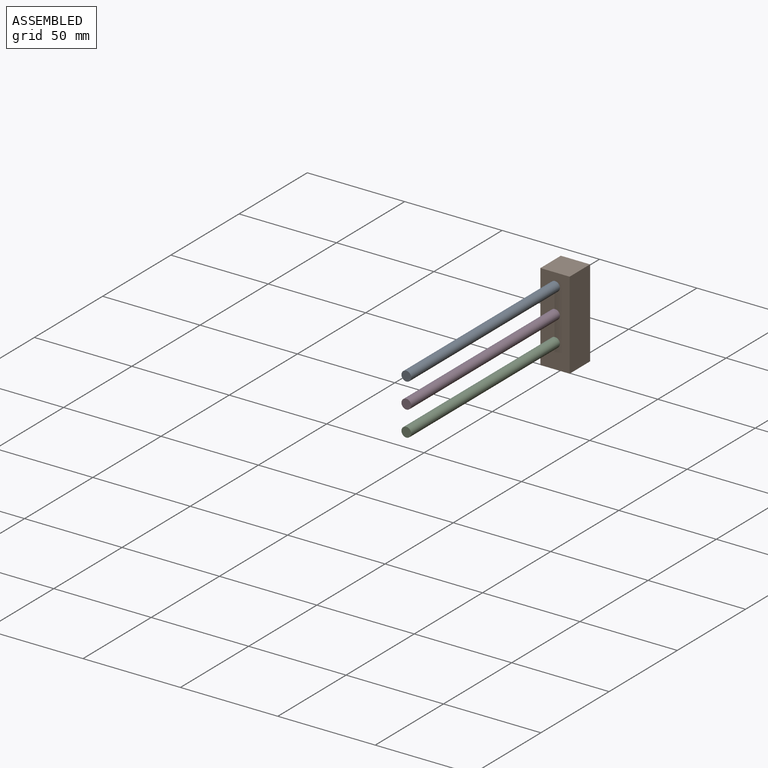
[diagram: assembled view]
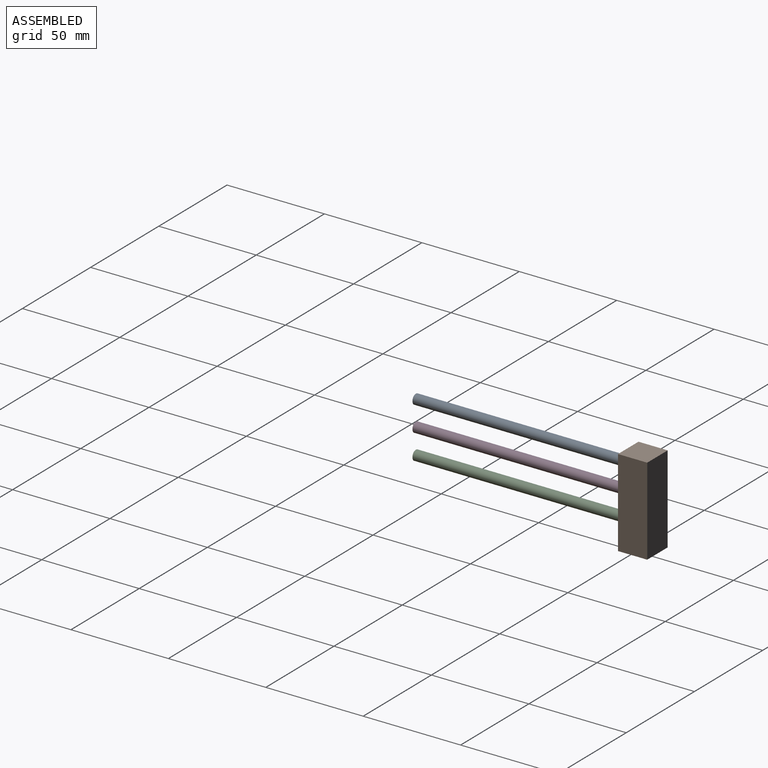
[diagram: assembled view, second angle]
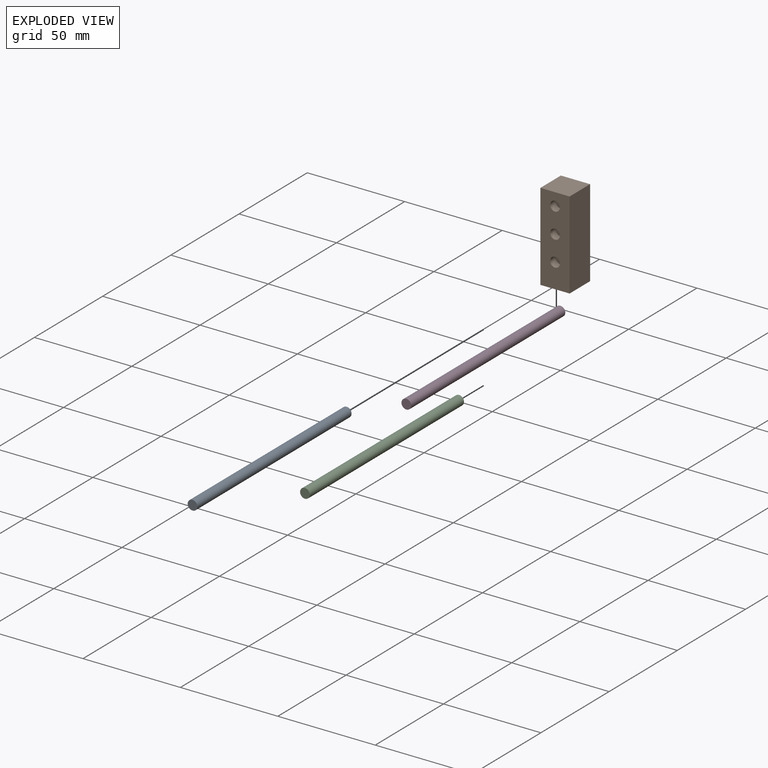
[diagram: exploded view]
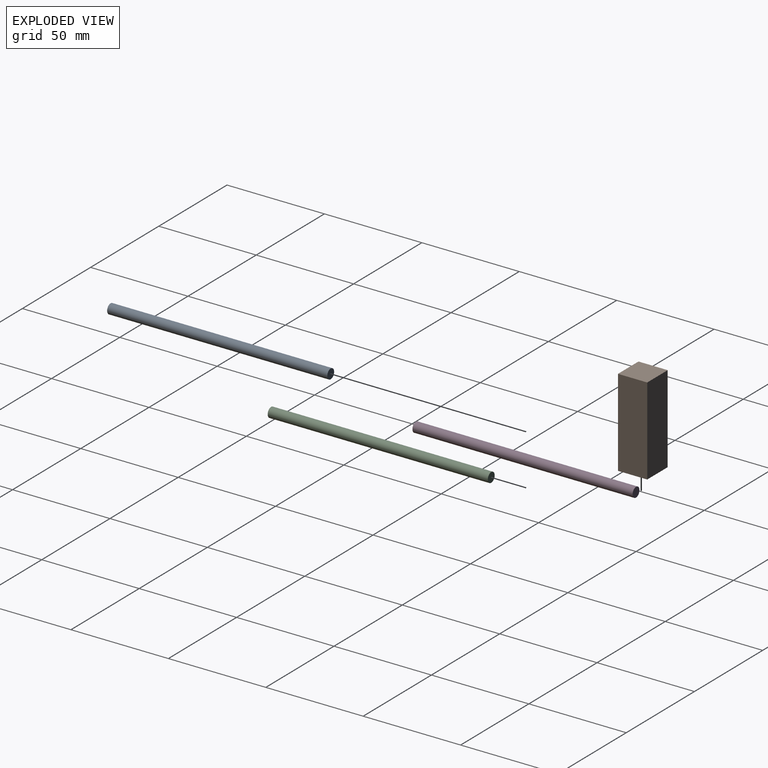
[diagram: exploded view, second angle]
ASSEMBLY  parts=4 mates=3
PART A: 3 faces, bbox 5x113x5 mm
  f0: cylinder r=2.5mm len=113mm, axis (0,1,0), area 1775mm2, adj f1,f2
  f1: plane 5x5mm, normal (0,-1,0), area 19.6mm2, adj f0
  f2: plane 5x5mm, normal (0,1,0), area 19.6mm2, adj f0
PART B: 18 faces, bbox 15x15x45 mm
  f0: plane 45x15mm, normal (1,0,0), area 616.1mm2, adj f1,f3,f4,f5,f6,f8,f10
  f1: plane 45x15mm, normal (0,1,0), area 675mm2, adj f0,f2,f4,f5
  f2: plane 45x15mm, normal (-1,0,0), area 675mm2, adj f1,f3,f4,f5
  f3: plane 45x15mm, normal (0,-1,0), area 616.1mm2, adj f0,f2,f4,f5,f12,f14,f16
  f4: plane 15x15mm, normal (0,0,1), area 225mm2, adj f0,f1,f2,f3
  f5: plane 15x15mm, normal (0,0,-1), area 225mm2, adj f0,f1,f2,f3
  f6: cylinder r=2.5mm len=5mm, axis (1,0,0), area 62.8mm2, adj f0,f7
  f7: plane 5x5mm, normal (1,0,0), area 19.6mm2, adj f6
  f8: cylinder r=2.5mm len=5mm, axis (1,0,0), area 62.8mm2, adj f0,f9
  f9: plane 5x5mm, normal (1,0,0), area 19.6mm2, adj f8
  f10: cylinder r=2.5mm len=5mm, axis (1,0,0), area 62.8mm2, adj f0,f11
  f11: plane 5x5mm, normal (1,0,0), area 19.6mm2, adj f10
  f12: cylinder r=2.5mm len=5mm, axis (0,-1,0), area 62.8mm2, adj f3,f13
  f13: plane 5x5mm, normal (0,-1,0), area 19.6mm2, adj f12
  f14: cylinder r=2.5mm len=5mm, axis (0,-1,0), area 62.8mm2, adj f3,f15
  f15: plane 5x5mm, normal (0,-1,0), area 19.6mm2, adj f14
  f16: cylinder r=2.5mm len=5mm, axis (0,-1,0), area 62.8mm2, adj f3,f17
  f17: plane 5x5mm, normal (0,-1,0), area 19.6mm2, adj f16
PART C: same geometry as A
PART D: same geometry as A
PLACE A at identity
PLACE B rot(axis=(0,0,-1),90deg) t=(0,3.5,-38.5)mm
PLACE C t=(0,0,-26)mm
PLACE D t=(0,0,-13)mm
MATE fastened B.f10 <-> A.f0  axis (0,-1,0) through (0,0,0)mm
MATE fastened D.f0 <-> B.f8  axis (0,1,0) through (0,0,-13)mm
MATE fastened B.f6 <-> C.f0  axis (0,-1,0) through (0,0,-26)mm
